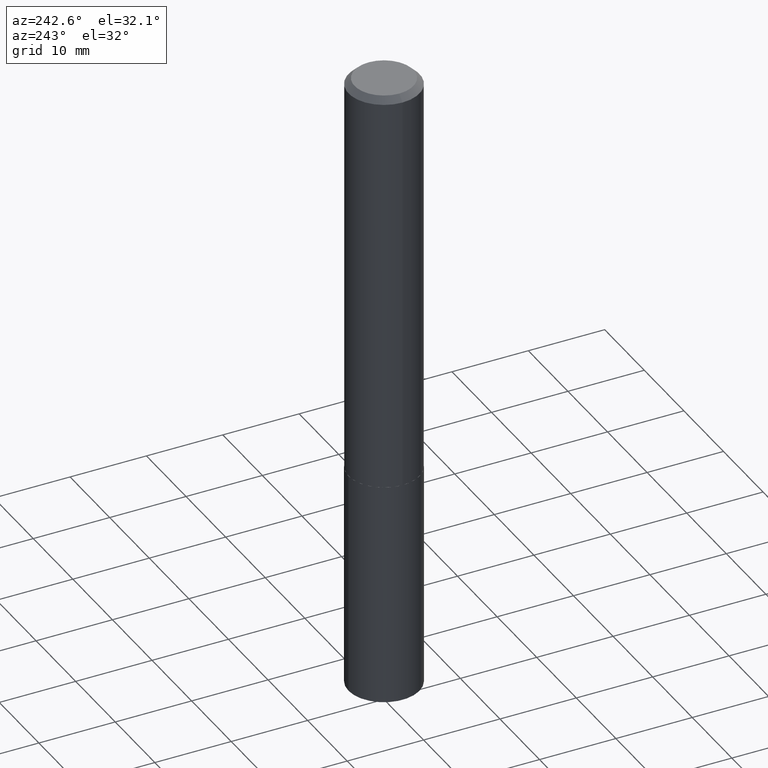
[diagram: clean part render]
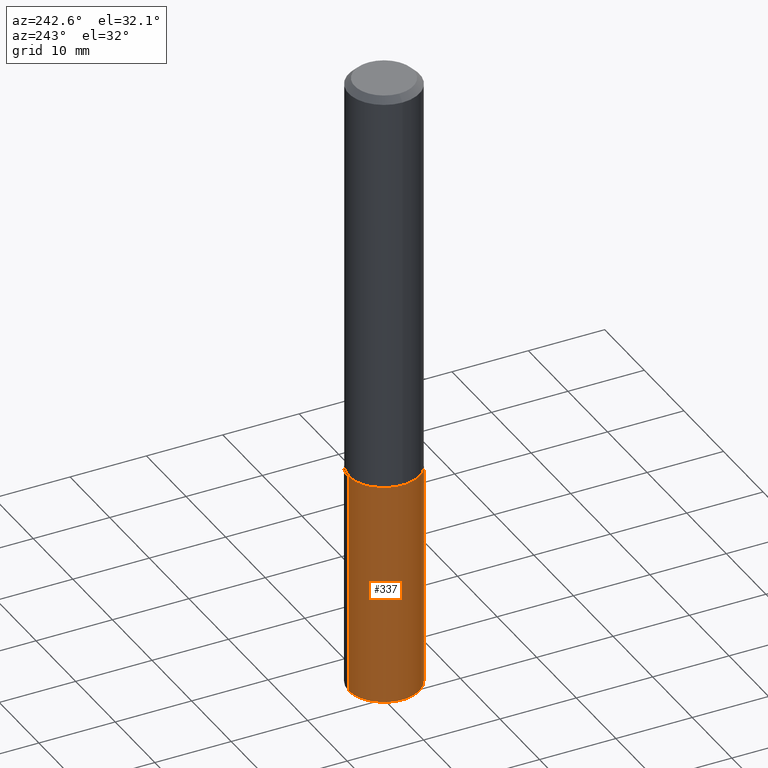
[diagram: same view with one face highlighted and labeled with its STEP entity id]
A machine part, auxiliary view. The second image highlights one B-rep face of the part: STEP entity #337.
In plain terms, the highlighted cylindrical surface (partial cylindrical patch) has radius 4.6495 mm, axis along (-0, 0, 1).
Its self-contained STEP definition (entity closure, byte-faithful):
#1 = CYLINDRICAL_SURFACE ( 'NONE', #158, 0.1830499999999999905 ) ;
#4 = ORIENTED_EDGE ( 'NONE', *, *, #27, .F. ) ;
#15 = ORIENTED_EDGE ( 'NONE', *, *, #127, .T. ) ;
#27 = EDGE_CURVE ( 'NONE', #374, #193, #247, .T. ) ;
#36 = EDGE_LOOP ( 'NONE', ( #4, #15, #69, #124 ) ) ;
#62 = DIRECTION ( 'NONE',  ( -6.982962677686264344E-15, -1.000000000000000000, 2.984810700534567995E-15 ) ) ;
#69 = ORIENTED_EDGE ( 'NONE', *, *, #92, .T. ) ;
#73 = DIRECTION ( 'NONE',  ( -2.445528654128284610E-29, 3.491395633182224159E-15, 1.000000000000000000 ) ) ;
#91 = DIRECTION ( 'NONE',  ( -2.445528654128284891E-29, 3.491395633182223764E-15, 1.000000000000000000 ) ) ;
#92 = EDGE_CURVE ( 'NONE', #220, #117, #114, .T. ) ;
#108 = VECTOR ( 'NONE', #229, 39.37007874015748143 ) ;
#113 = DIRECTION ( 'NONE',  ( -6.982962677686264344E-15, -1.000000000000000000, 2.984810700534567995E-15 ) ) ;
#114 = LINE ( 'NONE', #297, #108 ) ;
#117 = VERTEX_POINT ( 'NONE', #206 ) ;
#124 = ORIENTED_EDGE ( 'NONE', *, *, #375, .F. ) ;
#127 = EDGE_CURVE ( 'NONE', #374, #220, #280, .T. ) ;
#147 = DIRECTION ( 'NONE',  ( -2.445528654128284891E-29, 3.491395633182223764E-15, 1.000000000000000000 ) ) ;
#148 = CIRCLE ( 'NONE', #286, 0.1830499999999999905 ) ;
#158 = AXIS2_PLACEMENT_3D ( 'NONE', #304, #91, #62 ) ;
#164 = CARTESIAN_POINT ( 'NONE',  ( 1.300648477808914204E-15, 0.1830499999999926353, -2.098400000000001153 ) ) ;
#180 = DIRECTION ( 'NONE',  ( -6.982962677686264344E-15, -1.000000000000000000, 2.984810700534567995E-15 ) ) ;
#193 = VERTEX_POINT ( 'NONE', #322 ) ;
#206 = CARTESIAN_POINT ( 'NONE',  ( -1.278231318150419588E-15, -0.1830500000000073180, -2.098399999999999821 ) ) ;
#220 = VERTEX_POINT ( 'NONE', #227 ) ;
#224 = DIRECTION ( 'NONE',  ( -2.445528654128284891E-29, 3.491395633182223764E-15, 1.000000000000000000 ) ) ;
#227 = CARTESIAN_POINT ( 'NONE',  ( -1.278231318150391386E-15, -0.1830500000000113425, -3.258051900325483086 ) ) ;
#229 = DIRECTION ( 'NONE',  ( -2.445528654128284610E-29, 3.491395633182224159E-15, 1.000000000000000000 ) ) ;
#247 = LINE ( 'NONE', #164, #285 ) ;
#263 = AXIS2_PLACEMENT_3D ( 'NONE', #293, #224, #113 ) ;
#270 = FACE_OUTER_BOUND ( 'NONE', #36, .T. ) ;
#272 = CARTESIAN_POINT ( 'NONE',  ( 5.131571742898891458E-29, -7.326524441428458056E-15, -2.098400000000000709 ) ) ;
#280 = CIRCLE ( 'NONE', #263, 0.1830499999999999905 ) ;
#285 = VECTOR ( 'NONE', #73, 39.37007874015748143 ) ;
#286 = AXIS2_PLACEMENT_3D ( 'NONE', #272, #147, #180 ) ;
#293 = CARTESIAN_POINT ( 'NONE',  ( 7.967533693959178083E-29, -1.137532802223631787E-14, -3.258051900325483530 ) ) ;
#297 = CARTESIAN_POINT ( 'NONE',  ( -1.278231318150419588E-15, -0.1830500000000073180, -2.098399999999999821 ) ) ;
#304 = CARTESIAN_POINT ( 'NONE',  ( 5.131571742898891458E-29, -7.326524441428458056E-15, -2.098400000000000709 ) ) ;
#322 = CARTESIAN_POINT ( 'NONE',  ( 1.300648477808942800E-15, 0.1830499999999926630, -2.098400000000001153 ) ) ;
#337 = ADVANCED_FACE ( 'NONE', ( #270 ), #1, .T. ) ;
#374 = VERTEX_POINT ( 'NONE', #389 ) ;
#375 = EDGE_CURVE ( 'NONE', #193, #117, #148, .T. ) ;
#389 = CARTESIAN_POINT ( 'NONE',  ( 1.300648477808942800E-15, 0.1830499999999886107, -3.258051900325484418 ) ) ;